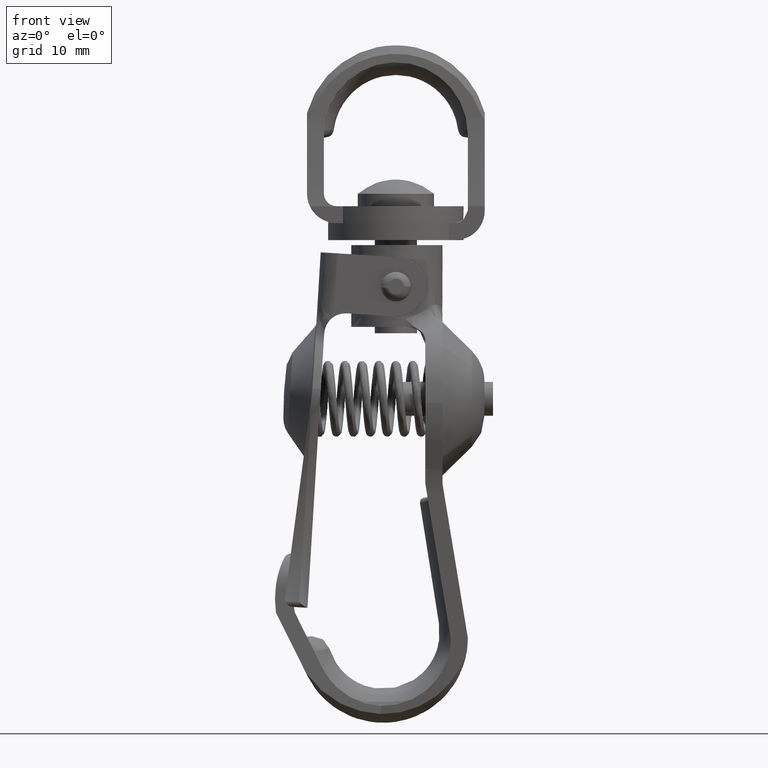
[diagram: clean part render]
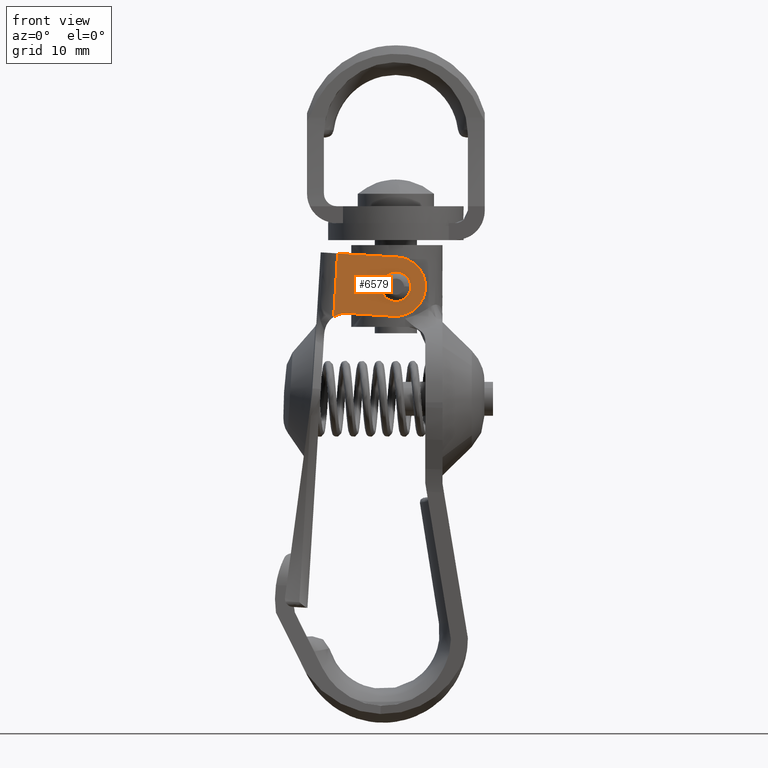
[diagram: same view with one face highlighted and labeled with its STEP entity id]
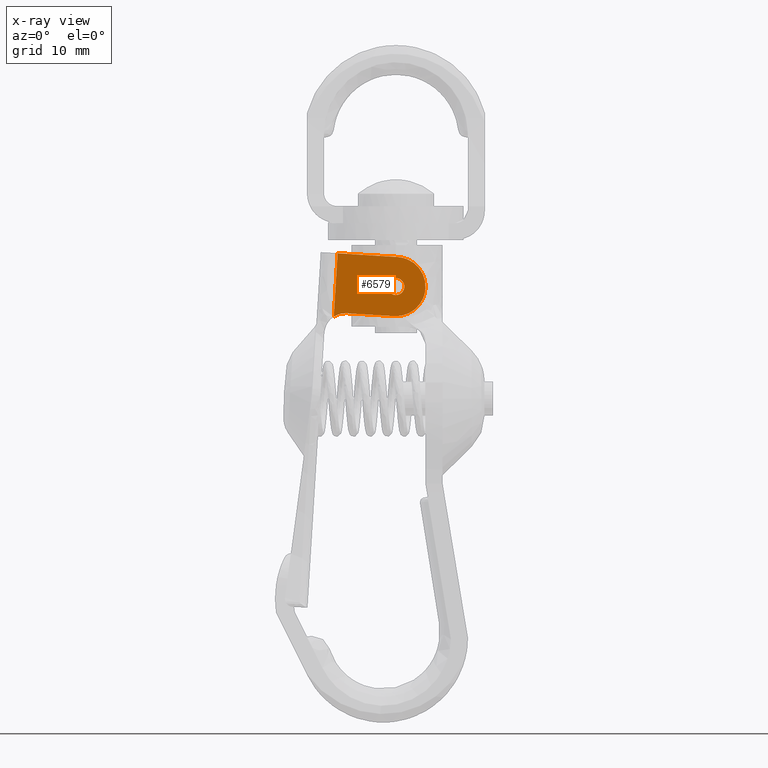
[diagram: x-ray of the same camera — body ghosted, the highlighted face saturated]
A machine part, front view. The second image highlights one B-rep face of the part: STEP entity #6579.
The next image is the same camera in x-ray: the body ghosted, the highlighted face saturated — about 0% of this face is hidden behind the body in this view.
In plain terms, the highlighted face is a freeform B-spline surface patch.
Its self-contained STEP definition (entity closure, byte-faithful):
#4375=CARTESIAN_POINT('',(0.763556137857581,-6.500000000000000,13.888250223873470));
#4376=VERTEX_POINT('',#4375);
#4382=CARTESIAN_POINT('',(0.0,-6.500000000000000,14.242507999999900));
#4383=VERTEX_POINT('',#4382);
#4384=CARTESIAN_POINT('',(0.763556137857581,-6.500000000000000,13.888250223873470));
#4385=CARTESIAN_POINT('',(0.664400278883165,-6.499999999999996,14.005953019708020));
#4386=CARTESIAN_POINT('',(0.425226780240057,-6.500000000000004,14.182551972914631));
#4387=CARTESIAN_POINT('',(0.135782008017570,-6.499999999999999,14.242674359387101));
#4388=CARTESIAN_POINT('',(0.0,-6.500000000000000,14.242507999999900));
#4389=B_SPLINE_CURVE_WITH_KNOTS('',3,(#4384,#4385,#4386,#4387,#4388),.UNSPECIFIED.,.F.,.U.,(4,1,4),(0.000000092472238,0.461544088127851,0.868828693207663),.UNSPECIFIED.);
#4390=EDGE_CURVE('',#4376,#4383,#4389,.T.);
#4392=CARTESIAN_POINT('',(-0.999999999997962,-6.500000000000000,13.242505981271940));
#4393=VERTEX_POINT('',#4392);
#4394=CARTESIAN_POINT('',(0.0,-6.500000000000000,14.242507999999900));
#4395=CARTESIAN_POINT('',(-0.163696460211535,-6.500000000000004,14.242847218468549));
#4396=CARTESIAN_POINT('',(-0.433326428088667,-6.499999999999996,14.174710938360620));
#4397=CARTESIAN_POINT('',(-0.703634524694872,-6.500000000000003,13.968925489953410));
#4398=CARTESIAN_POINT('',(-0.865486267723774,-6.500000000000011,13.761532254858439));
#4399=CARTESIAN_POINT('',(-0.972060474738223,-6.499999999999996,13.528831545811119));
#4400=CARTESIAN_POINT('',(-1.000045438169505,-6.500000000000001,13.340685776853840));
#4401=CARTESIAN_POINT('',(-0.999999999997962,-6.500000000000000,13.242505981271940));
#4402=B_SPLINE_CURVE_WITH_KNOTS('',3,(#4394,#4395,#4396,#4397,#4398,#4399,#4400,#4401),.UNSPECIFIED.,.F.,.U.,(4,1,1,1,1,4),(0.000000245823623,0.490896802437103,0.809926272235195,1.006299952943718,1.276310246501432,1.570836882195954),.UNSPECIFIED.);
#4403=EDGE_CURVE('',#4383,#4393,#4402,.T.);
#4405=CARTESIAN_POINT('',(0.0,-6.500000000000000,12.242507999999900));
#4406=VERTEX_POINT('',#4405);
#4407=CARTESIAN_POINT('',(-0.999999999997962,-6.500000000000000,13.242505981271940));
#4408=CARTESIAN_POINT('',(-1.000054735909450,-6.500000000000009,13.136145751484420));
#4409=CARTESIAN_POINT('',(-0.964445600507798,-6.499999999999994,12.915285021596020));
#4410=CARTESIAN_POINT('',(-0.804051009810924,-6.500000000000015,12.615019833337159));
#4411=CARTESIAN_POINT('',(-0.564079687397297,-6.499999999999983,12.397608282935060));
#4412=CARTESIAN_POINT('',(-0.286323949201262,-6.500000000000040,12.270448770709530));
#4413=CARTESIAN_POINT('',(-0.098177615662420,-6.499999999999991,12.242463012864430));
#4414=CARTESIAN_POINT('',(0.0,-6.500000000000000,12.242507999999900));
#4415=B_SPLINE_CURVE_WITH_KNOTS('',3,(#4407,#4408,#4409,#4410,#4411,#4412,#4413,#4414),.UNSPECIFIED.,.F.,.U.,(4,1,1,1,1,4),(0.000000248576374,0.319070290207142,0.662705590867078,1.006298491405287,1.276308395409540,1.570834606562275),.UNSPECIFIED.);
#4416=EDGE_CURVE('',#4393,#4406,#4415,.T.);
#4418=CARTESIAN_POINT('',(0.688354394380827,-6.500000000000000,12.517134151728770));
#4419=VERTEX_POINT('',#4418);
#4420=CARTESIAN_POINT('',(0.0,-6.500000000000000,12.242507999999900));
#4421=CARTESIAN_POINT('',(0.134462945498740,-6.500000000000015,12.242347426220990));
#4422=CARTESIAN_POINT('',(0.387394739636763,-6.499999999999983,12.294378327154860));
#4423=CARTESIAN_POINT('',(0.602351020487588,-6.500000000000007,12.435402590359089));
#4424=CARTESIAN_POINT('',(0.688354394380827,-6.500000000000000,12.517134151728770));
#4425=B_SPLINE_CURVE_WITH_KNOTS('',3,(#4420,#4421,#4422,#4423,#4424),.UNSPECIFIED.,.F.,.U.,(4,1,4),(0.000000059479339,0.403325923860254,0.759236064596710),.UNSPECIFIED.);
#4426=EDGE_CURVE('',#4406,#4419,#4425,.T.);
#4504=CARTESIAN_POINT('',(0.999999999997962,-6.500000000000000,13.242510018727851));
#4505=VERTEX_POINT('',#4504);
#4506=CARTESIAN_POINT('',(0.688354394380827,-6.500000000000000,12.517134151728770));
#4507=CARTESIAN_POINT('',(0.774259424557131,-6.500000000000012,12.598559580016561));
#4508=CARTESIAN_POINT('',(0.936983293258786,-6.499999999999984,12.820029939023600));
#4509=CARTESIAN_POINT('',(1.000247940487715,-6.500000000000015,13.090296288041570));
#4510=CARTESIAN_POINT('',(0.999999999997962,-6.500000000000000,13.242510018727851));
#4511=B_SPLINE_CURVE_WITH_KNOTS('',3,(#4506,#4507,#4508,#4509,#4510),.UNSPECIFIED.,.F.,.U.,(4,1,4),(0.000000065905934,0.355087065887204,0.811601433743173),.UNSPECIFIED.);
#4512=EDGE_CURVE('',#4419,#4505,#4511,.T.);
#4514=CARTESIAN_POINT('',(0.999999999997962,-6.500000000000000,13.242510018727851));
#4515=CARTESIAN_POINT('',(1.000068049169431,-6.500000000000004,13.352211410110380));
#4516=CARTESIAN_POINT('',(0.961083185877087,-6.499999999999992,13.586154438484400));
#4517=CARTESIAN_POINT('',(0.843931436352955,-6.500000000000004,13.793402012264870));
#4518=CARTESIAN_POINT('',(0.763556137857581,-6.500000000000000,13.888250223873470));
#4519=B_SPLINE_CURVE_WITH_KNOTS('',3,(#4514,#4515,#4516,#4517,#4518),.UNSPECIFIED.,.F.,.U.,(4,1,4),(0.000000050425048,0.329084098978760,0.702006755582827),.UNSPECIFIED.);
#4520=EDGE_CURVE('',#4505,#4376,#4519,.T.);
#5863=CARTESIAN_POINT('',(-7.111113999999779,-6.500000000000000,9.242508000000001));
#5864=VERTEX_POINT('',#5863);
#5880=CARTESIAN_POINT('',(-7.111113999999779,-6.500000000000000,16.742508000000001));
#5881=VERTEX_POINT('',#5880);
#5882=CARTESIAN_POINT('',(-7.111113999999779,-6.500000000000000,16.742508000000001));
#5883=CARTESIAN_POINT('',(-7.111113999999779,-6.500000000000000,9.242508000000001));
#5884=QUASI_UNIFORM_CURVE('',1,(#5882,#5883),.UNSPECIFIED.,.F.,.U.);
#5885=EDGE_CURVE('',#5881,#5864,#5884,.T.);
#6512=CARTESIAN_POINT('',(-7.641139223342917,-6.500000000000000,8.867882944131821));
#6513=CARTESIAN_POINT('',(4.030025413084641,-6.500000000000000,8.867882944131821));
#6514=CARTESIAN_POINT('',(-7.641139223342917,-6.500000000000000,17.117133189978631));
#6515=CARTESIAN_POINT('',(4.030025413084641,-6.500000000000000,17.117133189978631));
#6516=B_SPLINE_SURFACE_WITH_KNOTS('',1,1,((#6512,#6514),(#6513,#6515)),.UNSPECIFIED.,.F.,.F.,.U.,(2,2),(2,2),(0.0,11.671164636427561),(0.0,8.249250245846810),.UNSPECIFIED.);
#6517=CARTESIAN_POINT('',(-0.000000183259574,-6.500000000000000,16.742507999999901));
#6518=VERTEX_POINT('',#6517);
#6519=CARTESIAN_POINT('',(-0.000000183259574,-6.500000000000000,16.742507999999901));
#6520=CARTESIAN_POINT('',(-7.111113999999779,-6.500000000000000,16.742508000000001));
#6521=QUASI_UNIFORM_CURVE('',1,(#6519,#6520),.UNSPECIFIED.,.F.,.U.);
#6522=EDGE_CURVE('',#6518,#5881,#6521,.T.);
#6523=ORIENTED_EDGE('',*,*,#6522,.T.);
#6524=ORIENTED_EDGE('',*,*,#5885,.T.);
#6525=CARTESIAN_POINT('',(-5.611114130899480,-6.500000000000000,9.742508000000001));
#6526=VERTEX_POINT('',#6525);
#6527=CARTESIAN_POINT('',(-5.611114130899480,-6.500000000000000,9.742508000000001));
#6528=CARTESIAN_POINT('',(-5.929571408834423,-6.500000000000006,9.742849840671171));
#6529=CARTESIAN_POINT('',(-6.465528461640292,-6.499999999999965,9.638551651744752));
#6530=CARTESIAN_POINT('',(-6.936862597627081,-6.500000000000032,9.373265575314294));
#6531=CARTESIAN_POINT('',(-7.111113999999779,-6.500000000000000,9.242508000000001));
#6532=B_SPLINE_CURVE_WITH_KNOTS('',3,(#6527,#6528,#6529,#6530,#6531),.UNSPECIFIED.,.F.,.U.,(4,1,4),(0.000000031251768,0.955204757833009,1.608779743466148),.UNSPECIFIED.);
#6533=EDGE_CURVE('',#6526,#5864,#6532,.T.);
#6534=ORIENTED_EDGE('',*,*,#6533,.F.);
#6535=CARTESIAN_POINT('',(0.0,-6.500000000000000,9.742508000000001));
#6536=VERTEX_POINT('',#6535);
#6537=CARTESIAN_POINT('',(-5.611114130899480,-6.500000000000000,9.742508000000001));
#6538=CARTESIAN_POINT('',(0.0,-6.500000000000000,9.742508000000001));
#6539=QUASI_UNIFORM_CURVE('',1,(#6537,#6538),.UNSPECIFIED.,.F.,.U.);
#6540=EDGE_CURVE('',#6526,#6536,#6539,.T.);
#6541=ORIENTED_EDGE('',*,*,#6540,.T.);
#6542=CARTESIAN_POINT('',(3.499999999999999,-6.500000000000000,13.242508091629681));
#6543=VERTEX_POINT('',#6542);
#6544=CARTESIAN_POINT('',(0.0,-6.500000000000000,9.742508000000001));
#6545=CARTESIAN_POINT('',(0.429564087807631,-6.500000000000011,9.742151988547427));
#6546=CARTESIAN_POINT('',(1.173791003379691,-6.499999999999982,9.881324276552968));
#6547=CARTESIAN_POINT('',(2.085119939436834,-6.500000000000014,10.382997983669910));
#6548=CARTESIAN_POINT('',(2.659673948122790,-6.499999999999997,10.930107285014580));
#6549=CARTESIAN_POINT('',(3.077761819222932,-6.499999999999974,11.531581673718490));
#6550=CARTESIAN_POINT('',(3.404721225490645,-6.500000000000030,12.269023448783519));
#6551=CARTESIAN_POINT('',(3.500166106742492,-6.499999999999996,12.884565059175941));
#6552=CARTESIAN_POINT('',(3.499999999999999,-6.500000000000000,13.242508091629681));
#6553=B_SPLINE_CURVE_WITH_KNOTS('',3,(#6544,#6545,#6546,#6547,#6548,#6549,#6550,#6551,#6552),.UNSPECIFIED.,.F.,.U.,(4,1,1,1,1,1,4),(0.000000139571457,1.288551158255091,2.233518875767546,3.092495041305083,3.650886264178202,4.424037329463238,5.497821691721048),.UNSPECIFIED.);
#6554=EDGE_CURVE('',#6536,#6543,#6553,.T.);
#6555=ORIENTED_EDGE('',*,*,#6554,.T.);
#6556=CARTESIAN_POINT('',(3.499999999999999,-6.500000000000000,13.242508091629681));
#6557=CARTESIAN_POINT('',(3.500047773424320,-6.500000000000001,13.514533788240190));
#6558=CARTESIAN_POINT('',(3.434599956166320,-6.500000000000004,14.072887933302139));
#6559=CARTESIAN_POINT('',(3.153176253237342,-6.499999999999970,14.830108514749639));
#6560=CARTESIAN_POINT('',(2.764820963824120,-6.500000000000057,15.418930287607401));
#6561=CARTESIAN_POINT('',(2.220477860170301,-6.499999999999939,15.990931651528721));
#6562=CARTESIAN_POINT('',(1.527722981258209,-6.500000000000012,16.441624621773421));
#6563=CARTESIAN_POINT('',(0.701528320851465,-6.500000000000044,16.697580614649521));
#6564=CARTESIAN_POINT('',(0.214753863373599,-6.499999999999947,16.742519614621798));
#6565=CARTESIAN_POINT('',(-0.000000183259574,-6.500000000000000,16.742507999999901));
#6566=B_SPLINE_CURVE_WITH_KNOTS('',3,(#6556,#6557,#6558,#6559,#6560,#6561,#6562,#6563,#6564,#6565),.UNSPECIFIED.,.F.,.U.,(4,1,1,1,1,1,1,4),(0.000000139578590,0.816073728631646,1.675126762298026,2.405326940695673,2.920695839774564,4.037462088868408,4.853550761101993,5.497821691721054),.UNSPECIFIED.);
#6567=EDGE_CURVE('',#6543,#6518,#6566,.T.);
#6568=ORIENTED_EDGE('',*,*,#6567,.T.);
#6569=EDGE_LOOP('',(#6523,#6524,#6534,#6541,#6555,#6568));
#6570=FACE_OUTER_BOUND('',#6569,.T.);
#6571=ORIENTED_EDGE('',*,*,#4403,.F.);
#6572=ORIENTED_EDGE('',*,*,#4390,.F.);
#6573=ORIENTED_EDGE('',*,*,#4520,.F.);
#6574=ORIENTED_EDGE('',*,*,#4512,.F.);
#6575=ORIENTED_EDGE('',*,*,#4426,.F.);
#6576=ORIENTED_EDGE('',*,*,#4416,.F.);
#6577=EDGE_LOOP('',(#6571,#6572,#6573,#6574,#6575,#6576));
#6578=FACE_BOUND('',#6577,.T.);
#6579=ADVANCED_FACE('',(#6570,#6578),#6516,.T.);